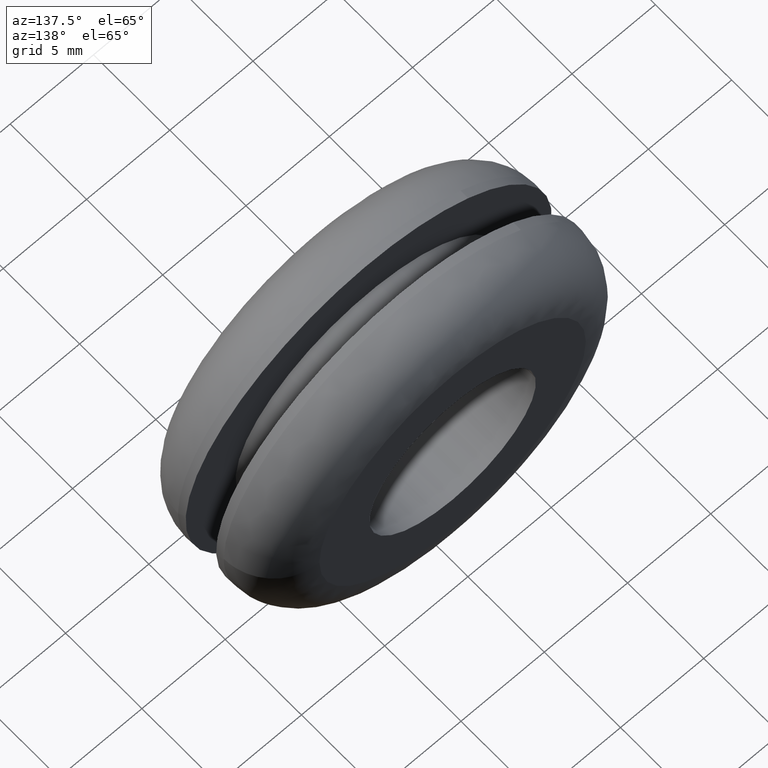
[diagram: clean part render]
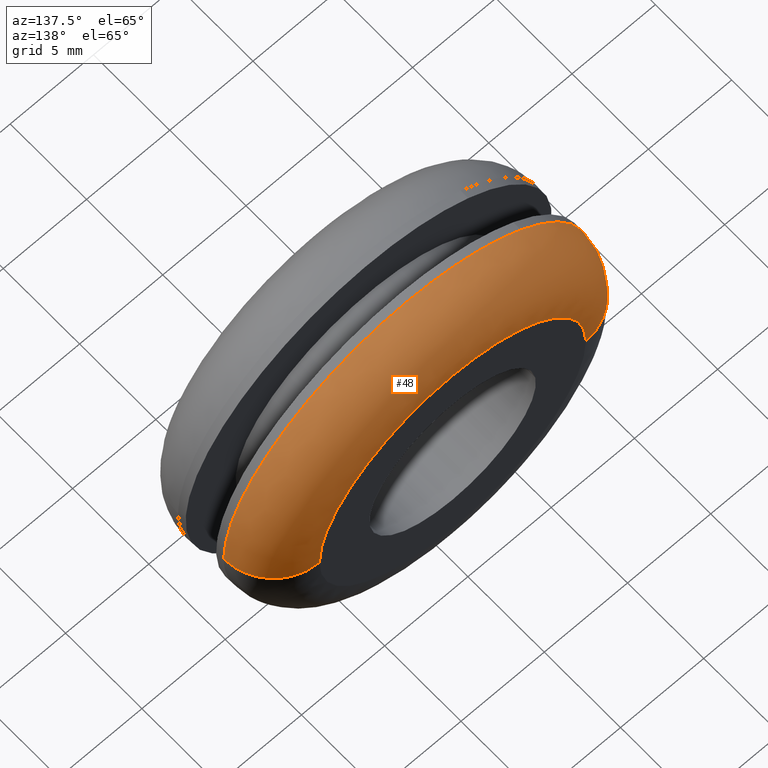
[diagram: same view with one face highlighted and labeled with its STEP entity id]
A machine part, auxiliary view. The second image highlights one B-rep face of the part: STEP entity #48.
In plain terms, the highlighted face is a freeform B-spline surface patch.
Its self-contained STEP definition (entity closure, byte-faithful):
#48=ADVANCED_FACE('',(#141),#140,.T.);
#140=( BOUNDED_SURFACE() B_SPLINE_SURFACE( 2,2,((#264,#265,#266,#267,#268),(#269,#270,#271,#272,#273),(#274,#275,#276,#277,#278),(#279,#280,#281,#282,#283),(#284,#285,#286,#287,#288)), .UNSPECIFIED.,.F.,.F.,.F.) B_SPLINE_SURFACE_WITH_KNOTS((3,2,3),(3,2,3),(-1.57079692083E+000,-1.04719683943E+000,2.13528948656E-006),(0.00000000000E+000,1.57079632679E+000,3.14159265359E+000), .UNSPECIFIED. ) GEOMETRIC_REPRESENTATION_ITEM() RATIONAL_B_SPLINE_SURFACE(((9.33012523951E-001,6.59739482618E-001,9.33012523951E-001,6.59739482618E-001,9.33012523951E-001),(9.33012447952E-001,6.59739428879E-001,9.33012447952E-001,6.59739428879E-001,9.33012447952E-001),(1.00000000000E+000,7.07106781187E-001,1.00000000000E+000,7.07106781187E-001,1.00000000000E+000),(8.66025047903E-001,6.12372184049E-001,8.66025047903E-001,6.12372184049E-001,8.66025047903E-001),(1.00000000000E+000,7.07106781187E-001,1.00000000000E+000,7.07106781187E-001,1.00000000000E+000))) REPRESENTATION_ITEM('') SURFACE() );
#141=FACE_OUTER_BOUND('',#289,.T.);
#264=CARTESIAN_POINT('',(-7.99999817603E+000,9.00000000000E+000,-3.92206177384E-016));
#265=CARTESIAN_POINT('',(-7.99999817603E+000,9.00000000000E+000,7.99999817603E+000));
#266=CARTESIAN_POINT('',(-3.36848017017E-013,9.00000000000E+000,7.99999817603E+000));
#267=CARTESIAN_POINT('',(7.99999817603E+000,9.00000000000E+000,7.99999817603E+000));
#268=CARTESIAN_POINT('',(7.99999817603E+000,9.00000000000E+000,-2.35157589677E-015));
#269=CARTESIAN_POINT('',(-8.80384787508E+000,9.00000048873E+000,-2.93764354105E-016));
#270=CARTESIAN_POINT('',(-8.80384787508E+000,9.00000048873E+000,8.80384787508E+000));
#271=CARTESIAN_POINT('',(-3.36749609500E-013,9.00000048873E+000,8.80384787508E+000));
#272=CARTESIAN_POINT('',(8.80384787508E+000,9.00000048873E+000,8.80384787508E+000));
#273=CARTESIAN_POINT('',(8.80384787508E+000,9.00000048873E+000,-2.45001396329E-015));
#274=CARTESIAN_POINT('',(-9.50000184922E+000,8.59807514371E+000,-1.75326135457E-015));
#275=CARTESIAN_POINT('',(-9.50000184922E+000,8.59807514371E+000,9.50000184921E+000));
#276=CARTESIAN_POINT('',(-3.09996635006E-013,8.59807514371E+000,9.50000184921E+000));
#277=CARTESIAN_POINT('',(9.50000184921E+000,8.59807514371E+000,9.50000184921E+000));
#278=CARTESIAN_POINT('',(9.50000184921E+000,8.59807514371E+000,-4.08001387975E-015));
#279=CARTESIAN_POINT('',(-1.10000036984E+001,7.73204724875E+000,-4.89803719581E-015));
#280=CARTESIAN_POINT('',(-1.10000036984E+001,7.73204724875E+000,1.10000036984E+001));
#281=CARTESIAN_POINT('',(-2.52352043861E-013,7.73204724875E+000,1.10000036984E+001));
#282=CARTESIAN_POINT('',(1.10000036984E+001,7.73204724875E+000,1.10000036984E+001));
#283=CARTESIAN_POINT('',(1.10000036984E+001,7.73204724875E+000,-7.59217208004E-015));
#284=CARTESIAN_POINT('',(-1.10000000000E+001,5.99999359413E+000,-1.15549634835E-014));
#285=CARTESIAN_POINT('',(-1.10000000000E+001,5.99999359413E+000,1.10000000000E+001));
#286=CARTESIAN_POINT('',(-1.37430386060E-013,5.99999359413E+000,1.10000000000E+001));
#287=CARTESIAN_POINT('',(1.10000000000E+001,5.99999359413E+000,1.10000000000E+001));
#288=CARTESIAN_POINT('',(1.10000000000E+001,5.99999359413E+000,-1.42490974619E-014));
#289=EDGE_LOOP('',(#437,#438,#439,#440,#441,#442));
#437=ORIENTED_EDGE('',*,*,#503,.T.);
#438=ORIENTED_EDGE('',*,*,#526,.T.);
#439=ORIENTED_EDGE('',*,*,#527,.F.);
#440=ORIENTED_EDGE('',*,*,#528,.F.);
#441=ORIENTED_EDGE('',*,*,#529,.F.);
#442=ORIENTED_EDGE('',*,*,#530,.F.);
#503=EDGE_CURVE('',#633,#625,#634,.T.);
#526=EDGE_CURVE('',#625,#789,#790,.T.);
#527=EDGE_CURVE('',#796,#789,#797,.T.);
#528=EDGE_CURVE('',#803,#796,#804,.T.);
#529=EDGE_CURVE('',#810,#803,#811,.T.);
#530=EDGE_CURVE('',#633,#810,#817,.T.);
#625=VERTEX_POINT('',#946);
#633=VERTEX_POINT('',#952);
#634=CIRCLE('',#956,8.00000000055E+000);
#789=VERTEX_POINT('',#1054);
#790=(BOUNDED_CURVE() B_SPLINE_CURVE(2,(#1055,#1056,#1057,#1058,#1059),.UNSPECIFIED.,.F.,.F.) B_SPLINE_CURVE_WITH_KNOTS((3,2,3),(-1.57079631639E+000,-1.04719683943E+000,2.12488549941E-006),.UNSPECIFIED.) CURVE() GEOMETRIC_REPRESENTATION_ITEM() RATIONAL_B_SPLINE_CURVE((9.33012523951E-001,9.33012525282E-001,1.00000000000E+000,8.66025047903E-001,1.00000000000E+000)) REPRESENTATION_ITEM('') );
#796=VERTEX_POINT('',#1060);
#797=CIRCLE('',#1064,1.10000000000E+001);
#803=VERTEX_POINT('',#1065);
#804=CIRCLE('',#1069,1.10000000000E+001);
#810=VERTEX_POINT('',#1070);
#811=CIRCLE('',#1074,1.10000000000E+001);
#817=(BOUNDED_CURVE() B_SPLINE_CURVE(2,(#1075,#1076,#1077,#1078,#1079),.UNSPECIFIED.,.F.,.F.) B_SPLINE_CURVE_WITH_KNOTS((3,2,3),(-1.57079642759E+000,-1.04719683943E+000,2.13528948656E-006),.UNSPECIFIED.) CURVE() GEOMETRIC_REPRESENTATION_ITEM() RATIONAL_B_SPLINE_CURVE((9.33012523951E-001,9.33012511055E-001,1.00000000000E+000,8.66025047903E-001,1.00000000000E+000)) REPRESENTATION_ITEM('') );
#946=CARTESIAN_POINT('',(-8.00000000080E+000,9.00000000000E+000,-1.21271826859E-007));
#952=CARTESIAN_POINT('',(8.00000000030E+000,9.00000000000E+000,3.98535176652E-008));
#953=CARTESIAN_POINT('',(-2.50963250181E-010,9.00000000000E+000,-5.53298740158E-010));
#954=DIRECTION('',(2.71934273453E-016,-1.00000000000E+000,2.33938667008E-015));
#955=DIRECTION('',(3.13701703503E-011,-2.33938667007E-015,-1.00000000000E+000));
#956=AXIS2_PLACEMENT_3D('',#953,#954,#955);
#1054=CARTESIAN_POINT('',(-1.10000000000E+001,5.99999363508E+000,4.05085390000E-008));
#1055=CARTESIAN_POINT('',(-8.00000003194E+000,9.00000000000E+000,-3.92205950106E-016));
#1056=CARTESIAN_POINT('',(-8.80384873642E+000,8.99999999144E+000,-2.93766159899E-016));
#1057=CARTESIAN_POINT('',(-9.50000184922E+000,8.59807514371E+000,-1.75326135457E-015));
#1058=CARTESIAN_POINT('',(-1.10000036984E+001,7.73204724875E+000,-4.89803719581E-015));
#1059=CARTESIAN_POINT('',(-1.10000000000E+001,5.99999359413E+000,-1.15549634835E-014));
#1060=CARTESIAN_POINT('',(-6.84774920322E+000,5.99999732699E+000,8.60861956702E+000));
#1061=CARTESIAN_POINT('',(1.45519152284E-011,5.99999681754E+000,7.25286497527E-012));
#1062=DIRECTION('',(2.89314066266E-007,-1.00000000000E+000,2.89314395575E-007));
#1063=DIRECTION('',(6.22514523593E-001,-4.63176237566E-008,-7.82608246772E-001));
#1064=AXIS2_PLACEMENT_3D('',#1061,#1062,#1063);
#1065=CARTESIAN_POINT('',(0.00000000000E+000,6.00000000000E+000,1.10000000000E+001));
#1066=CARTESIAN_POINT('',(1.45519152284E-011,5.99999681754E+000,7.25286497527E-012));
#1067=DIRECTION('',(2.89314066266E-007,-1.00000000000E+000,2.89314395575E-007));
#1068=DIRECTION('',(6.22514523593E-001,-4.63176237566E-008,-7.82608246772E-001));
#1069=AXIS2_PLACEMENT_3D('',#1066,#1067,#1068);
#1070=CARTESIAN_POINT('',(1.10000000000E+001,5.99999394488E+000,1.19646067771E-005));
#1071=CARTESIAN_POINT('',(-2.55884202716E-011,5.99999679707E+000,9.14290865239E-012));
#1072=DIRECTION('',(-2.59289933366E-007,-1.00000000000E+000,2.91175781390E-007));
#1073=DIRECTION('',(-9.93311708750E-001,2.91175938714E-007,1.15463627435E-001));
#1074=AXIS2_PLACEMENT_3D('',#1071,#1072,#1073);
#1075=CARTESIAN_POINT('',(7.99999969050E+000,9.00000000000E+000,-2.35157608223E-015));
#1076=CARTESIAN_POINT('',(8.80384857795E+000,9.00000008293E+000,-2.45001560900E-015));
#1077=CARTESIAN_POINT('',(9.50000184921E+000,8.59807514371E+000,-4.08001387975E-015));
#1078=CARTESIAN_POINT('',(1.10000036984E+001,7.73204724875E+000,-7.59217208004E-015));
#1079=CARTESIAN_POINT('',(1.10000000000E+001,5.99999359413E+000,-1.42490974619E-014));